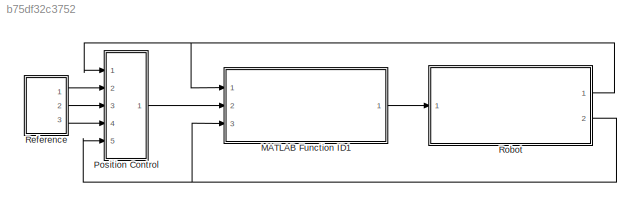
MODEL slx_b75df32c3752
KIND model
CONFIG AbsTol = auto
CONFIG EnableMultiTasking = off
CONFIG FixedStep = 0.005
CONFIG MaxStep = auto
CONFIG MinStep = auto
CONFIG RelTol = 1e-3
CONFIG SampleTimeConstraint = Unconstrained
CONFIG Solver = ode4
CONFIG SolverName = ode4
CONFIG StartTime = 0.0
CONFIG StopTime = 10
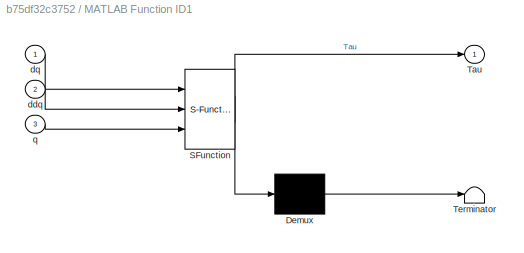
BLOCK [SubSystem] MATLAB Function ID1
  ErrorFcn = Stateflow.Translate.translate
  PermitHierarchicalResolution = ExplicitOnly
  Ports = [3, 1]
  RequestExecContextInheritance = off
  SFBlockType = MATLAB Function
  TreatAsAtomicUnit = on
BLOCK [Demux] MATLAB Function ID1/ Demux 
  Outputs = 1
  Ports = [1, 1]
BLOCK [S-Function] MATLAB Function ID1/ SFunction 
  EnableBusSupport = on
  FunctionName = sf_sfun
  PortCounts = [3 2]
  Ports = [3, 2]
  SFcnIsStateOwnerBlock = off
  SFunctionDeploymentMode = off
  Tag = Stateflow S-Function Joint_Position_Control 4
BLOCK [Terminator] MATLAB Function ID1/ Terminator 
BLOCK [Outport] MATLAB Function ID1/Tau
  IconDisplay = Port number
BLOCK [Inport] MATLAB Function ID1/ddq
  IconDisplay = Port number
  Port = 2
BLOCK [Inport] MATLAB Function ID1/dq
  IconDisplay = Port number
BLOCK [Inport] MATLAB Function ID1/q
  IconDisplay = Port number
  Port = 3
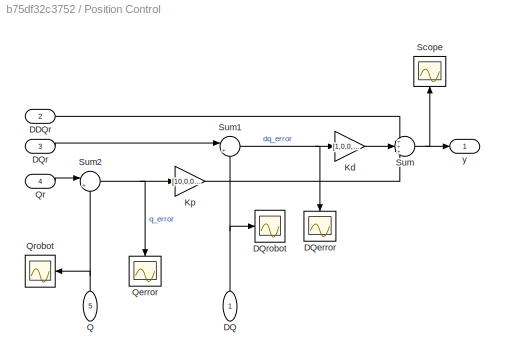
BLOCK [SubSystem] Position Control
  Ports = [5, 1]
  RequestExecContextInheritance = off
BLOCK [Inport] Position Control/DDQr
  IconDisplay = Port number
  Port = 2
BLOCK [Inport] Position Control/DQ
  IconDisplay = Port number
BLOCK [Scope] Position Control/DQerror
  Floating = off
  NumInputPorts = 1
  Ports = [1]
  ScopeSpecificationString = Simulink.scopes.TimeScopeBlockCfg('CurrentConfiguration', extmgr.ConfigurationSet(extmgr.Configuration('Core','General UI',true),extmgr.Configuration('Core','Source UI',true),extmgr.Configuration('Sources','WiredSimulink',true,'DataLoggingVariableName','ScopeData6'),extmgr.Configuration('Visuals','Time Domain',true,'SerializedDisplays',{struct('MinYLimReal','-2.59695','MaxYLimReal','3.68485','YLab...<+1488ch>
BLOCK [Inport] Position Control/DQr
  IconDisplay = Port number
  Port = 3
BLOCK [Scope] Position Control/DQrobot
  Floating = off
  NumInputPorts = 1
  Ports = [1]
  ScopeSpecificationString = Simulink.scopes.TimeScopeBlockCfg('CurrentConfiguration', extmgr.ConfigurationSet(extmgr.Configuration('Core','General UI',true),extmgr.Configuration('Core','Source UI',true),extmgr.Configuration('Sources','WiredSimulink',true,'DataLoggingVariableName','ScopeData4'),extmgr.Configuration('Visuals','Time Domain',true,'SerializedDisplays',{struct('MinYLimReal','-4.30321','MaxYLimReal','1.58925','YLab...<+1451ch>
BLOCK [Gain] Position Control/Kd
  Gain = [1,0,0,0,0,0;0,1,0,0,0,0;0,0,1,0,0,0;0,0,0,1,0,0;0,0,0,0,1,0;0,0,0,0,0,1]
  Multiplication = Matrix(K*u)
  OutDataTypeStr = Inherit: Inherit via internal rule
  ParamDataTypeStr = Inherit: Inherit via internal rule
  SaturateOnIntegerOverflow = off
BLOCK [Gain] Position Control/Kp
  Gain = [10,0,0,0,0,0;0,12,0,0,0,0;0,0,13,0,0,0;0,0,0,6,0,0;0,0,0,0,8,0;0,0,0,0,0,2]
  Multiplication = Matrix(K*u)
  OutDataTypeStr = Inherit: Inherit via internal rule
  ParamDataTypeStr = Inherit: Inherit via internal rule
  SaturateOnIntegerOverflow = off
BLOCK [Inport] Position Control/Q
  IconDisplay = Port number
  Port = 5
BLOCK [Scope] Position Control/Qerror
  Floating = off
  NumInputPorts = 1
  Ports = [1]
  ScopeSpecificationString = Simulink.scopes.TimeScopeBlockCfg('CurrentConfiguration', extmgr.ConfigurationSet(extmgr.Configuration('Core','General UI',true),extmgr.Configuration('Core','Source UI',true),extmgr.Configuration('Sources','WiredSimulink',true,'DataLoggingVariableName','ScopeData5'),extmgr.Configuration('Visuals','Time Domain',true,'SerializedDisplays',{struct('MinYLimReal','-1.40706','MaxYLimReal','0.89772','YLab...<+1481ch>
BLOCK [Inport] Position Control/Qr
  IconDisplay = Port number
  Port = 4
BLOCK [Scope] Position Control/Qrobot
  Floating = off
  NumInputPorts = 1
  Ports = [1]
  ScopeSpecificationString = Simulink.scopes.TimeScopeBlockCfg('CurrentConfiguration', extmgr.ConfigurationSet(extmgr.Configuration('Core','General UI',true),extmgr.Configuration('Core','Source UI',true),extmgr.Configuration('Sources','WiredSimulink',true,'DataLoggingVariableName','ScopeData3'),extmgr.Configuration('Visuals','Time Domain',true,'SerializedDisplays',{struct('MinYLimReal','-18.62857','MaxYLimReal','3.32385','YLa...<+1450ch>
BLOCK [Scope] Position Control/Scope
  Floating = off
  NumInputPorts = 1
  Ports = [1]
  ScopeSpecificationString = Simulink.scopes.TimeScopeBlockCfg('CurrentConfiguration', extmgr.ConfigurationSet(extmgr.Configuration('Core','General UI',true),extmgr.Configuration('Core','Source UI',true),extmgr.Configuration('Sources','WiredSimulink',true,'DataLoggingVariableName','ScopeData7'),extmgr.Configuration('Visuals','Time Domain',true),extmgr.Configuration('Tools','Plot Navigation',true),extmgr.Configuration('Tools',...<+40ch>
BLOCK [Sum] Position Control/Sum
  IconShape = round
  InputSameDT = off
  Inputs = +++
  OutDataTypeStr = Inherit: Inherit via internal rule
  Ports = [3, 1]
  SaturateOnIntegerOverflow = off
BLOCK [Sum] Position Control/Sum1
  IconShape = round
  InputSameDT = off
  Inputs = |+-
  OutDataTypeStr = Inherit: Inherit via internal rule
  Ports = [2, 1]
  SaturateOnIntegerOverflow = off
BLOCK [Sum] Position Control/Sum2
  IconShape = round
  InputSameDT = off
  Inputs = |+-
  OutDataTypeStr = Inherit: Inherit via internal rule
  Ports = [2, 1]
  SaturateOnIntegerOverflow = off
BLOCK [Outport] Position Control/y
  IconDisplay = Port number
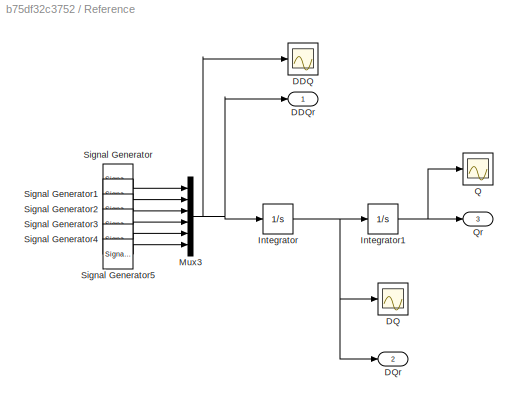
BLOCK [SubSystem] Reference
  Ports = [0, 3]
  RequestExecContextInheritance = off
BLOCK [Scope] Reference/DDQ
  Floating = off
  NumInputPorts = 1
  Ports = [1]
  ScopeSpecificationString = Simulink.scopes.TimeScopeBlockCfg('CurrentConfiguration', extmgr.ConfigurationSet(extmgr.Configuration('Core','General UI',true),extmgr.Configuration('Core','Source UI',true),extmgr.Configuration('Sources','WiredSimulink',true,'DataLoggingVariableName','ScopeData1'),extmgr.Configuration('Visuals','Time Domain',true,'SerializedDisplays',{struct('MinYLimReal','-1.25','MaxYLimReal','1.25','YLabelReal...<+1509ch>
BLOCK [Outport] Reference/DDQr
  IconDisplay = Port number
BLOCK [Scope] Reference/DQ
  Floating = off
  NumInputPorts = 1
  Ports = [1]
  ScopeSpecificationString = Simulink.scopes.TimeScopeBlockCfg('CurrentConfiguration', extmgr.ConfigurationSet(extmgr.Configuration('Core','General UI',true),extmgr.Configuration('Core','Source UI',true),extmgr.Configuration('Sources','WiredSimulink',true,'DataLoggingVariableName','ScopeData1'),extmgr.Configuration('Visuals','Time Domain',true,'SerializedDisplays',{struct('MinYLimReal','-1.25','MaxYLimReal','1.25','YLabelReal...<+1509ch>
BLOCK [Outport] Reference/DQr
  IconDisplay = Port number
  Port = 2
BLOCK [Integrator] Reference/Integrator
  Ports = [1, 1]
BLOCK [Integrator] Reference/Integrator1
  Ports = [1, 1]
BLOCK [Mux] Reference/Mux3
  DisplayOption = bar
  Inputs = 6
  Ports = [6, 1]
BLOCK [Scope] Reference/Q
  Floating = off
  NumInputPorts = 1
  Ports = [1]
  ScopeSpecificationString = Simulink.scopes.TimeScopeBlockCfg('CurrentConfiguration', extmgr.ConfigurationSet(extmgr.Configuration('Core','General UI',true),extmgr.Configuration('Core','Source UI',true),extmgr.Configuration('Sources','WiredSimulink',true,'DataLoggingVariableName','ScopeData2'),extmgr.Configuration('Visuals','Time Domain',true),extmgr.Configuration('Tools','Plot Navigation',true),extmgr.Configuration('Tools',...<+40ch>
BLOCK [Outport] Reference/Qr
  IconDisplay = Port number
  Port = 3
BLOCK [SignalGenerator] Reference/Signal Generator
  Ports = [0, 1]
  Units = rad/sec
  WaveForm = square
BLOCK [SignalGenerator] Reference/Signal Generator1
  Ports = [0, 1]
  Units = rad/sec
  WaveForm = square
BLOCK [SignalGenerator] Reference/Signal Generator2
  Ports = [0, 1]
  Units = rad/sec
  WaveForm = square
BLOCK [SignalGenerator] Reference/Signal Generator3
  Ports = [0, 1]
  Units = rad/sec
  WaveForm = square
BLOCK [SignalGenerator] Reference/Signal Generator4
  Ports = [0, 1]
  Units = rad/sec
  WaveForm = square
BLOCK [SignalGenerator] Reference/Signal Generator5
  Ports = [0, 1]
  Units = rad/sec
  WaveForm = square
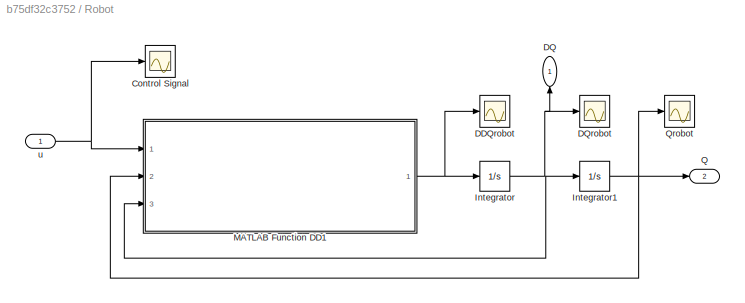
BLOCK [SubSystem] Robot
  Ports = [1, 2]
  RequestExecContextInheritance = off
BLOCK [Scope] Robot/Control Signal
  Floating = off
  NumInputPorts = 1
  Ports = [1]
  ScopeSpecificationString = Simulink.scopes.TimeScopeBlockCfg('CurrentConfiguration', extmgr.ConfigurationSet(extmgr.Configuration('Core','General UI',true),extmgr.Configuration('Core','Source UI',true),extmgr.Configuration('Sources','WiredSimulink',true,'DataLoggingVariableName','ScopeData11'),extmgr.Configuration('Visuals','Time Domain',true),extmgr.Configuration('Tools','Plot Navigation',true),extmgr.Configuration('Tools'...<+41ch>
BLOCK [Scope] Robot/DDQrobot
  Floating = off
  NumInputPorts = 1
  Ports = [1]
  ScopeSpecificationString = Simulink.scopes.TimeScopeBlockCfg('CurrentConfiguration', extmgr.ConfigurationSet(extmgr.Configuration('Core','General UI',true),extmgr.Configuration('Core','Source UI',true),extmgr.Configuration('Sources','WiredSimulink',true,'DataLoggingVariableName','ScopeData8'),extmgr.Configuration('Visuals','Time Domain',true,'SerializedDisplays',{struct('MinYLimReal','-17.87738','MaxYLimReal','10.89644','YL...<+1535ch>
BLOCK [Outport] Robot/DQ
  IconDisplay = Port number
BLOCK [Scope] Robot/DQrobot
  Floating = off
  NumInputPorts = 1
  Ports = [1]
  ScopeSpecificationString = Simulink.scopes.TimeScopeBlockCfg('CurrentConfiguration', extmgr.ConfigurationSet(extmgr.Configuration('Core','General UI',true),extmgr.Configuration('Core','Source UI',true),extmgr.Configuration('Sources','WiredSimulink',true,'DataLoggingVariableName','ScopeData9'),extmgr.Configuration('Visuals','Time Domain',true),extmgr.Configuration('Tools','Plot Navigation',true),extmgr.Configuration('Tools',...<+40ch>
BLOCK [Integrator] Robot/Integrator
  InitialCondition = [1,1,1,1,1,1]
  Ports = [1, 1]
BLOCK [Integrator] Robot/Integrator1
  InitialCondition = [1,1,1,1,1,1]
  Ports = [1, 1]
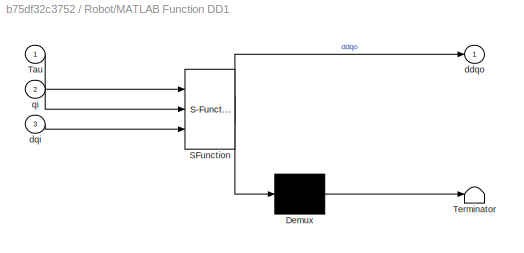
BLOCK [SubSystem] Robot/MATLAB Function DD1
  ErrorFcn = Stateflow.Translate.translate
  PermitHierarchicalResolution = ExplicitOnly
  Ports = [3, 1]
  RequestExecContextInheritance = off
  SFBlockType = MATLAB Function
  TreatAsAtomicUnit = on
BLOCK [Demux] Robot/MATLAB Function DD1/ Demux 
  Outputs = 1
  Ports = [1, 1]
BLOCK [S-Function] Robot/MATLAB Function DD1/ SFunction 
  EnableBusSupport = on
  FunctionName = sf_sfun
  PortCounts = [3 2]
  Ports = [3, 2]
  SFcnIsStateOwnerBlock = off
  SFunctionDeploymentMode = off
  Tag = Stateflow S-Function Joint_Position_Control 3
BLOCK [Terminator] Robot/MATLAB Function DD1/ Terminator 
BLOCK [Inport] Robot/MATLAB Function DD1/Tau
  IconDisplay = Port number
BLOCK [Outport] Robot/MATLAB Function DD1/ddqo
  IconDisplay = Port number
BLOCK [Inport] Robot/MATLAB Function DD1/dqi
  IconDisplay = Port number
  Port = 3
BLOCK [Inport] Robot/MATLAB Function DD1/qi
  IconDisplay = Port number
  Port = 2
BLOCK [Outport] Robot/Q
  IconDisplay = Port number
  Port = 2
BLOCK [Scope] Robot/Qrobot
  Floating = off
  NumInputPorts = 1
  Ports = [1]
  ScopeSpecificationString = Simulink.scopes.TimeScopeBlockCfg('CurrentConfiguration', extmgr.ConfigurationSet(extmgr.Configuration('Core','General UI',true),extmgr.Configuration('Core','Source UI',true),extmgr.Configuration('Sources','WiredSimulink',true,'DataLoggingVariableName','ScopeData10'),extmgr.Configuration('Visuals','Time Domain',true),extmgr.Configuration('Tools','Plot Navigation',true),extmgr.Configuration('Tools'...<+41ch>
BLOCK [Inport] Robot/u
  IconDisplay = Port number
LINE MATLAB Function ID1:1 -> Robot:1
LINE Position Control/DDQr:1 -> Position Control/Sum:1
NET Position Control/DQ:1 -> Position Control/DQrobot:1, Position Control/Sum1:2
LINE Position Control/DQr:1 -> Position Control/Sum1:1
LINE Position Control/Kd:1 -> Position Control/Sum:2
LINE Position Control/Kp:1 -> Position Control/Sum:3
NET Position Control/Q:1 -> Position Control/Qrobot:1, Position Control/Sum2:2
LINE Position Control/Qr:1 -> Position Control/Sum2:1
NET Position Control/Sum1:1 -> Position Control/DQerror:1, Position Control/Kd:1
NET Position Control/Sum2:1 -> Position Control/Kp:1, Position Control/Qerror:1
NET Position Control/Sum:1 -> Position Control/Scope:1, Position Control/y:1
LINE Position Control:1 -> MATLAB Function ID1:2
NET Reference/Integrator1:1 -> Reference/Q:1, Reference/Qr:1
NET Reference/Integrator:1 -> Reference/DQ:1, Reference/DQr:1, Reference/Integrator1:1
NET Reference/Mux3:1 -> Reference/DDQ:1, Reference/DDQr:1, Reference/Integrator:1
LINE Reference/Signal Generator1:1 -> Reference/Mux3:2
LINE Reference/Signal Generator2:1 -> Reference/Mux3:3
LINE Reference/Signal Generator3:1 -> Reference/Mux3:4
LINE Reference/Signal Generator4:1 -> Reference/Mux3:5
LINE Reference/Signal Generator5:1 -> Reference/Mux3:6
LINE Reference/Signal Generator:1 -> Reference/Mux3:1
LINE Reference:1 -> Position Control:2
LINE Reference:2 -> Position Control:3
LINE Reference:3 -> Position Control:4
NET Robot/Integrator1:1 -> Robot/MATLAB Function DD1:2, Robot/Q:1, Robot/Qrobot:1
NET Robot/Integrator:1 -> Robot/DQ:1, Robot/DQrobot:1, Robot/Integrator1:1, Robot/MATLAB Function DD1:3
NET Robot/MATLAB Function DD1:1 -> Robot/DDQrobot:1, Robot/Integrator:1
NET Robot/u:1 -> Robot/Control Signal:1, Robot/MATLAB Function DD1:1
NET Robot:1 -> MATLAB Function ID1:1, Position Control:1
NET Robot:2 -> MATLAB Function ID1:3, Position Control:5
note: NET lines group one-source signal fan-out (src -> all destinations, sorted); 1:1 wires keep LINE
CHART Robot/MATLAB Function DD1 states=1 transitions=1
  STATE_LABEL 'eML_blk_kernel()'
  STATE_LABEL "SCRIPT:\nfunction ddqo = DirectDynamics(Tau,qi,dqi)\n    ddqo = zeros(6,1);\n    coder.extrinsic('SolveSyms');\n    c = zeros(6,1);\n    m = zeros(6,6);\n    g = zeros(6,1);\n    [m,g,c] = SolveSyms(qi,dqi);\n    ddqo = m\\(Tau-c-g);\nend"
CHART MATLAB Function ID1 states=1 transitions=1
  STATE_LABEL 'eML_blk_kernel()'
  STATE_LABEL "SCRIPT:\nfunction Tau   = Inverse_Dynamics(dq,ddq,q)\n    Tau = zeros(6,1);\n    c = zeros(6,1);\n    m = zeros(6,6);\n    g = zeros(6,1);\n    coder.extrinsic('SolveSyms');\n    [m,g,c] = SolveSyms(q,dq);\n    Tau = (m*ddq + c + g);\nend"
